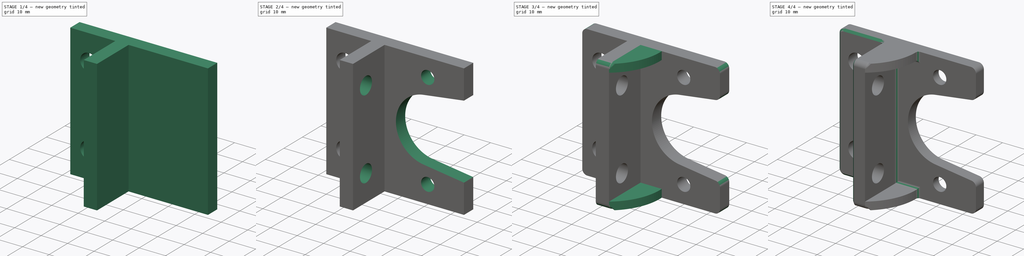
[diagram: build sequence overview — one tinted view per stage of 4, left to right]
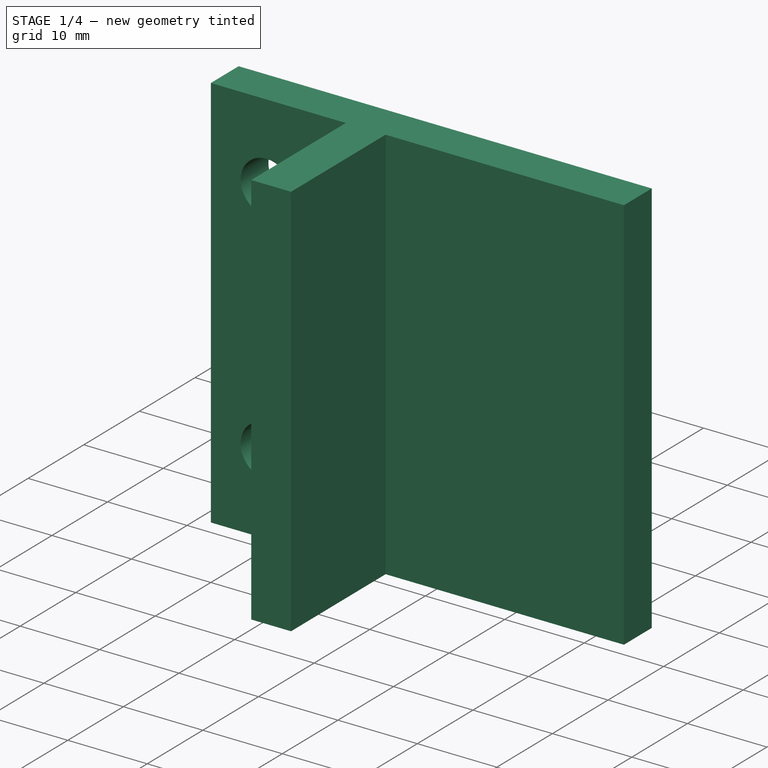
[diagram: stage 1 of 4 — iso view after this stage's code; geometry added in this stage tinted green]
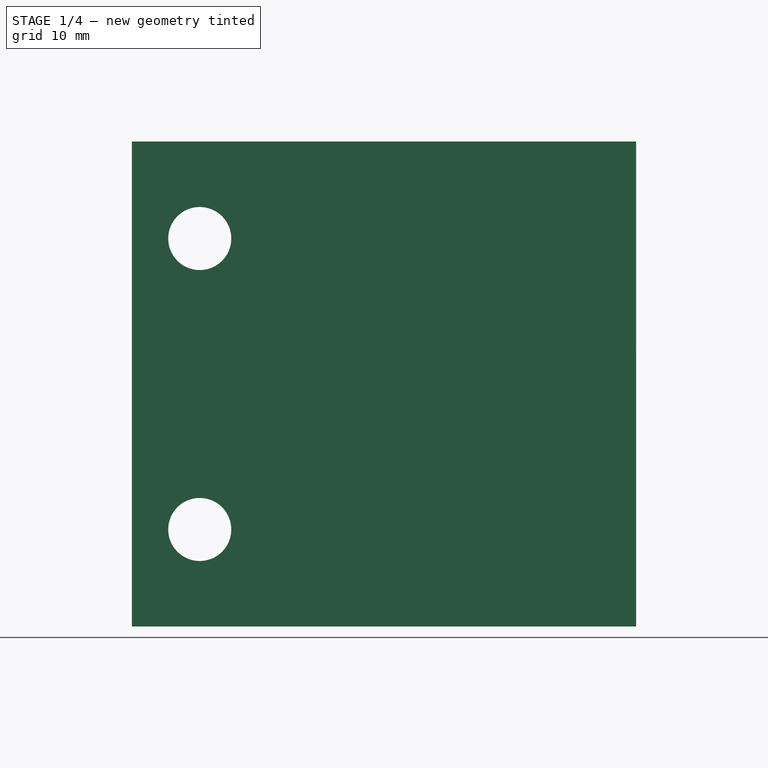
[diagram: stage 1 of 4 — front view after this stage's code; geometry added in this stage tinted green]
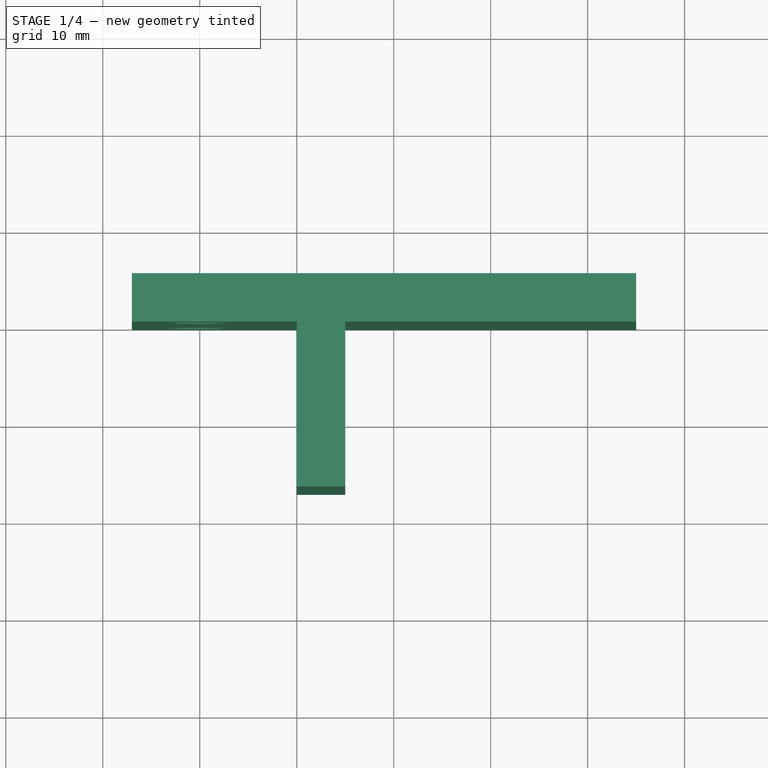
[diagram: stage 1 of 4 — top view after this stage's code; geometry added in this stage tinted green]
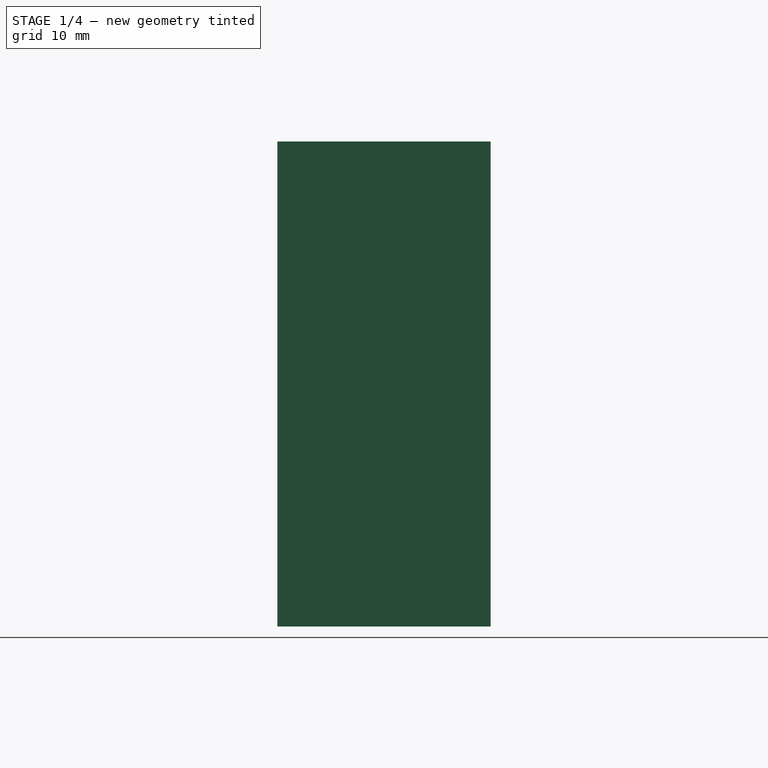
[diagram: stage 1 of 4 — right view after this stage's code; geometry added in this stage tinted green]
FCSTD DOCUMENT  (FreeCAD 0.17R10283 (Git))
Label: bearing_top
License: All rights reserved
LicenseURL: http://en.wikipedia.org/wiki/All_rights_reserved
objects: Sketcher::SketchObject×8, PartDesign::Pocket×6, PartDesign::Pad×2, PartDesign::Fillet×2, PartDesign::Mirrored×1, PartDesign::Chamfer×1, PartDesign::Body×1
note: 29 computed .brp shape members not serialized (recipe doc carries the construction recipe); baked Part::Feature solids carry a one-line shape summary decoded from their .brp

FEATURE [Sketcher::SketchObject] Sketch
  MapMode = 5
  Support = -> [XY_Plane]
  sketch-geometry (4):
    g0: LineSegment StartX=-17 StartY=5 StartZ=0 EndX=35 EndY=5 EndZ=0
    g1: LineSegment StartX=35 StartY=5 StartZ=0 EndX=35 EndY=-17 EndZ=0
    g2: LineSegment StartX=35 StartY=-17 StartZ=0 EndX=-17 EndY=-17 EndZ=0
    g3: LineSegment StartX=-17 StartY=-17 StartZ=0 EndX=-17 EndY=5 EndZ=0
  constraints (12):
    c: Coincident(g0,g1)
    c: Coincident(g1,g2)
    c: Coincident(g2,g3)
    c: Coincident(g3,g0)
    c: Horizontal(g0)
    c: Horizontal(g2)
    c: Vertical(g1)
    c: Vertical(g3)
    c: DistanceX(g0,g0) = 52
    c: DistanceY(g3,g3) = 22
    c: DistanceY(g-1,g0) = 5
    c: DistanceX(g0,g-1) = 17
FEATURE [PartDesign::Pad] Pad
  Length = 50
  Length2 = 100
  Midplane = true
  Profile = -> Sketch
  Type = 0
FEATURE [Sketcher::SketchObject] Sketch001
  ExternalGeometry = -> [Pad]
  MapMode = 5
  Placement = pos=(0,0,25) rot=(0,0,1;0rad)
  Support = -> [Pad]
  sketch-geometry (8):
    g0: LineSegment StartX=-17 StartY=-17 StartZ=0 EndX=0 EndY=-17 EndZ=0
    g1: LineSegment StartX=0 StartY=-17 StartZ=0 EndX=0 EndY=0 EndZ=0
    g2: LineSegment StartX=0 StartY=0 StartZ=0 EndX=-17 EndY=0 EndZ=0
    g3: LineSegment StartX=-17 StartY=0 StartZ=0 EndX=-17 EndY=-17 EndZ=0
    g4: LineSegment StartX=35 StartY=-17 StartZ=0 EndX=5 EndY=-17 EndZ=0
    g5: LineSegment StartX=5 StartY=-17 StartZ=0 EndX=5 EndY=0 EndZ=0
    g6: LineSegment StartX=5 StartY=0 StartZ=0 EndX=35 EndY=0 EndZ=0
    g7: LineSegment StartX=35 StartY=0 StartZ=0 EndX=35 EndY=-17 EndZ=0
  constraints (21):
    c: Coincident(g0,g1)
    c: Coincident(g2,g3)
    c: Coincident(g3,g0)
    c: Horizontal(g0)
    c: Horizontal(g2)
    c: Vertical(g1)
    c: Vertical(g3)
    c: Coincident(g0,g-3)
    c: Coincident(g1,g2)
    c: Coincident(g1,g-1)
    c: Coincident(g4,g5)
    c: Coincident(g5,g6)
    c: Coincident(g6,g7)
    c: Coincident(g7,g4)
    c: Horizontal(g4)
    c: Horizontal(g6)
    c: Vertical(g5)
    c: Vertical(g7)
    c: Coincident(g4,g-4)
    c: DistanceX(g-1,g5) = 5
    c: DistanceY(g-1,g5) = 0
FEATURE [PartDesign::Pocket] Pocket
  BaseFeature = -> Pad
  Length = 5
  Profile = -> Sketch001
  Type = 1
FEATURE [Sketcher::SketchObject] Sketch003
  ExternalGeometry = -> [Pocket]
  MapMode = 5
  Placement = pos=(0,5,0) rot=(0,0.707107,0.707107;3.14159rad)
  Support = -> [Pocket]
  sketch-geometry (2):
    g0: Circle CenterX=10 CenterY=15 CenterZ=0 NormalX=0 NormalY=0 NormalZ=1 Radius=3.25
    g1: Circle CenterX=10 CenterY=-15 CenterZ=0 NormalX=0 NormalY=0 NormalZ=1 Radius=3.25
  constraints (6):
    c: DistanceX(g-1,g0) = 10
    c: Radius(g0) = 3.25
    c: Equal(g0,g1)
    c: DistanceX(g0,g1) = 0
    c: Symmetric(g0,g1,g-1)
    c: DistanceY(g1,g0) = 30
FEATURE [PartDesign::Pocket] Pocket001
  BaseFeature = -> Pocket
  Length = 5
  Profile = -> Sketch003
  Type = 0
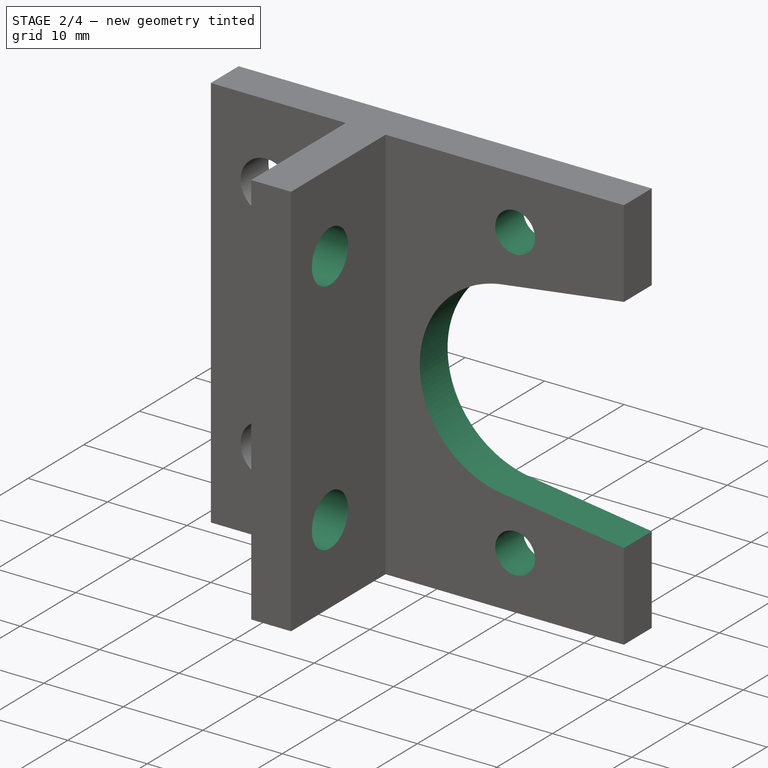
[diagram: stage 2 of 4 — iso view after this stage's code; geometry added in this stage tinted green]
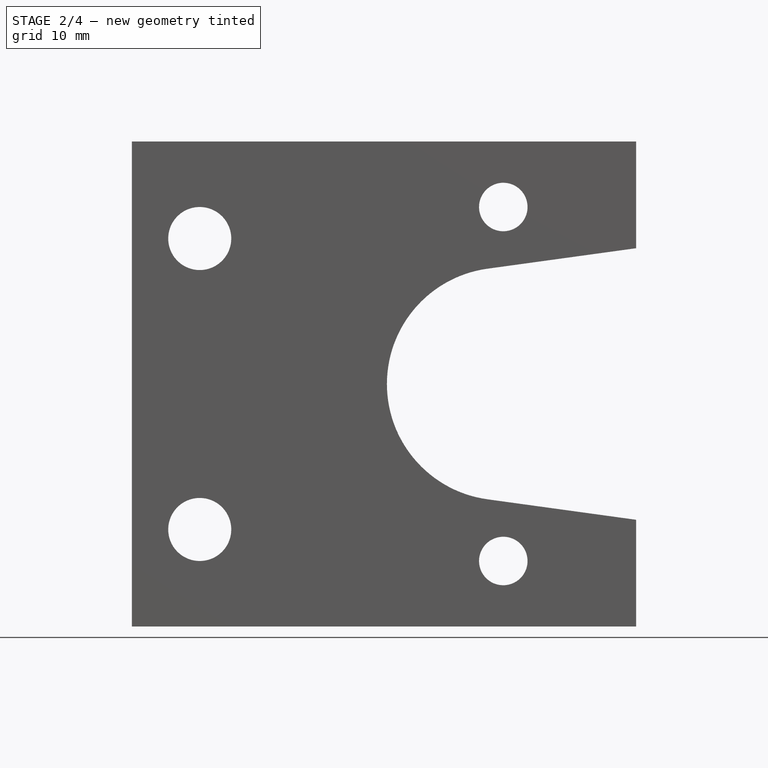
[diagram: stage 2 of 4 — front view after this stage's code; geometry added in this stage tinted green]
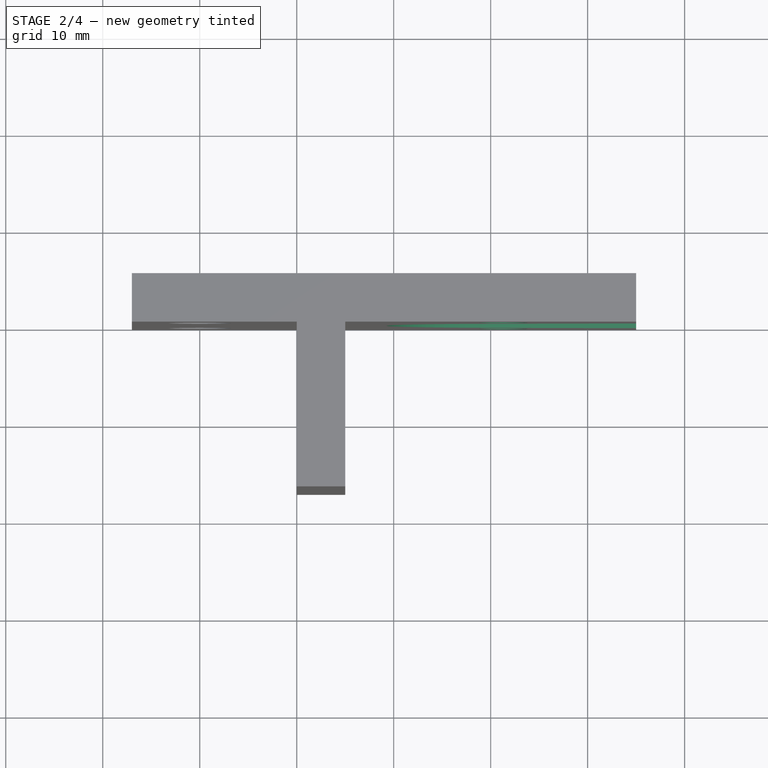
[diagram: stage 2 of 4 — top view after this stage's code; geometry added in this stage tinted green]
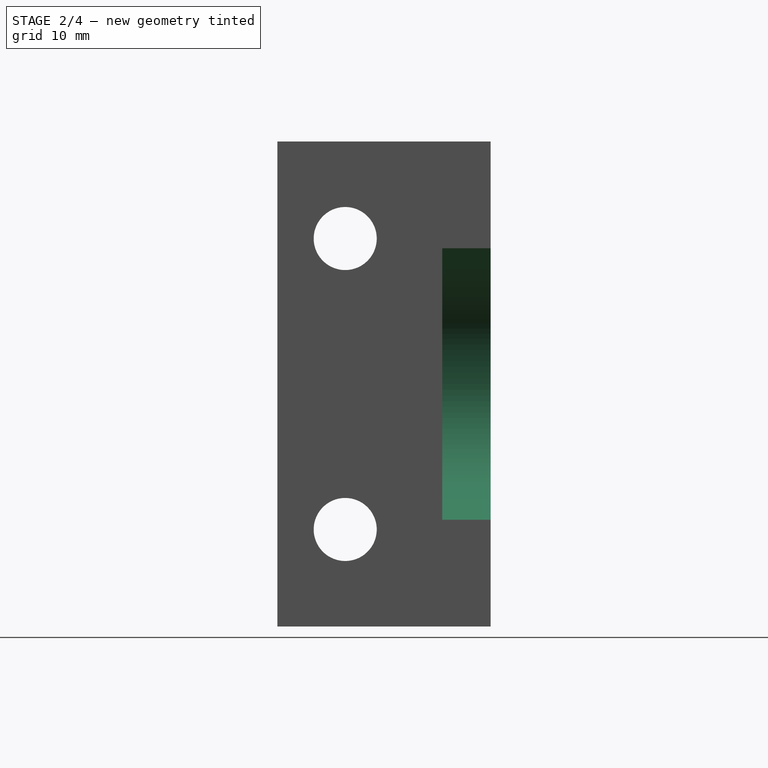
[diagram: stage 2 of 4 — right view after this stage's code; geometry added in this stage tinted green]
FEATURE [Sketcher::SketchObject] Sketch004
  MapMode = 5
  Placement = pos=(35,0,0) rot=(0.57735,0.57735,0.57735;2.0944rad)
  Support = -> [Pocket001]
  sketch-geometry (2):
    g0: Circle CenterX=-10 CenterY=15 CenterZ=0 NormalX=0 NormalY=0 NormalZ=1 Radius=3.25
    g1: Circle CenterX=-10 CenterY=-15 CenterZ=0 NormalX=0 NormalY=0 NormalZ=1 Radius=3.25
  constraints (6):
    c: DistanceX(g0,g-1) = 10
    c: Radius(g0) = 3.25
    c: Equal(g0,g1) = 2
    c: DistanceX(g0,g1) = 0
    c: Symmetric(g0,g1,g-1)
    c: DistanceY(g1,g0) = 30
FEATURE [PartDesign::Pocket] Pocket002
  BaseFeature = -> Pocket001
  Length = 5
  Profile = -> Sketch004
  Type = 1
FEATURE [Sketcher::SketchObject] Sketch005
  ExternalGeometry = -> [Pocket002]
  MapMode = 5
  Placement = pos=(0,0,0) rot=(1,0,0;1.5708rad)
  Support = -> [XZ_Plane]
  sketch-geometry (3):
    g0: Circle CenterX=21.3 CenterY=0 CenterZ=0 NormalX=0 NormalY=0 NormalZ=1 Radius=5
    g1: Circle CenterX=21.3 CenterY=18.25 CenterZ=0 NormalX=0 NormalY=0 NormalZ=1 Radius=2.5
    g2: Circle CenterX=21.3 CenterY=-18.25 CenterZ=0 NormalX=0 NormalY=0 NormalZ=1 Radius=2.5
  constraints (9):
    c: PointOnObject(g0,g-1)
    c: DistanceX(g-2,g0) = 21.3
    c: Radius(g0) = 5
    c: DistanceX(g0,g1) = 0
    c: DistanceX(g0,g2) = 0
    c: DistanceY(g2,g1) = 36.5
    c: Symmetric(g1,g2,g-1)
    c: Radius(g1) = 2.5
    c: Equal(g1,g2)
FEATURE [PartDesign::Pocket] Pocket003
  BaseFeature = -> Pocket002
  Length = 5
  Profile = -> Sketch005
  Type = 1
FEATURE [Sketcher::SketchObject] Sketch007
  ExternalGeometry = -> [Pocket003]
  MapMode = 5
  Placement = pos=(0,5,0) rot=(0,0.707107,0.707107;3.14159rad)
  Support = -> [Pocket003]
  sketch-geometry (4):
    g0: ArcOfCircle CenterX=-21.3 CenterY=0 CenterZ=0 NormalX=0 NormalY=0 NormalZ=1 Radius=12 StartAngle=4.84925 EndAngle=7.71712
    g1: LineSegment StartX=-19.6628 StartY=11.8878 StartZ=0 EndX=-35 EndY=14 EndZ=0
    g2: LineSegment StartX=-35 StartY=14 StartZ=0 EndX=-35 EndY=-14 EndZ=0
    g3: LineSegment StartX=-35 StartY=-14 StartZ=0 EndX=-19.6628 EndY=-11.8878 EndZ=0
  constraints (12):
    c: Coincident(g0,g-3)
    c: PointOnObject(g1,g-4)
    c: Coincident(g1,g2)
    c: Vertical(g2)
    c: Coincident(g2,g3)
    c: Coincident(g3,g0)
    c: Coincident(g0,g1)
    c: Tangent(g0,g1)
    c: Tangent(g0,g3)
    c: Symmetric(g1,g2,g-1)
    c: DistanceY(g2,g1) = 28
    c: Radius(g0) = 12
FEATURE [PartDesign::Pocket] Pocket004
  BaseFeature = -> Pocket003
  Length = 5
  Profile = -> Sketch007
  Type = 0
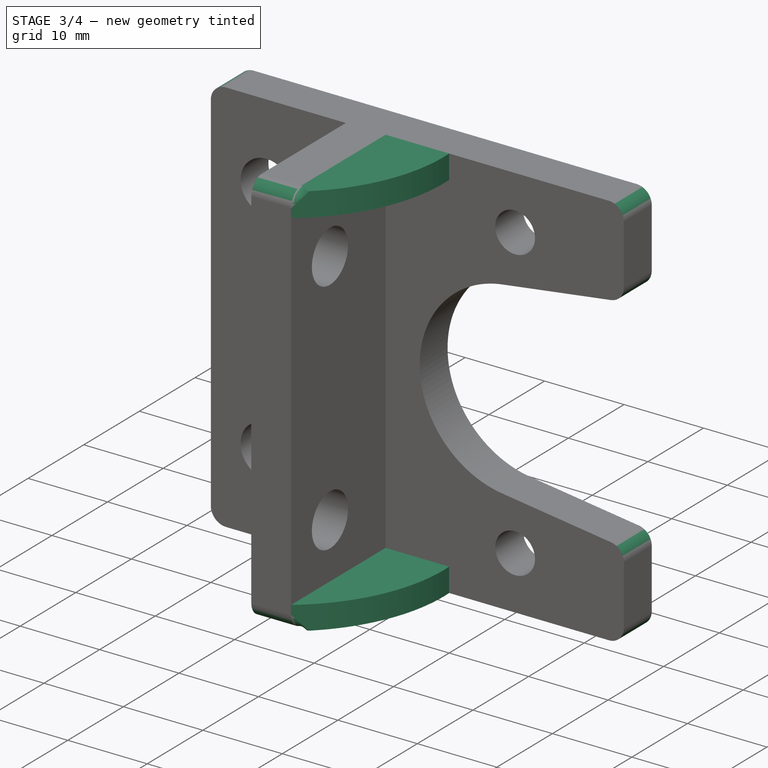
[diagram: stage 3 of 4 — iso view after this stage's code; geometry added in this stage tinted green]
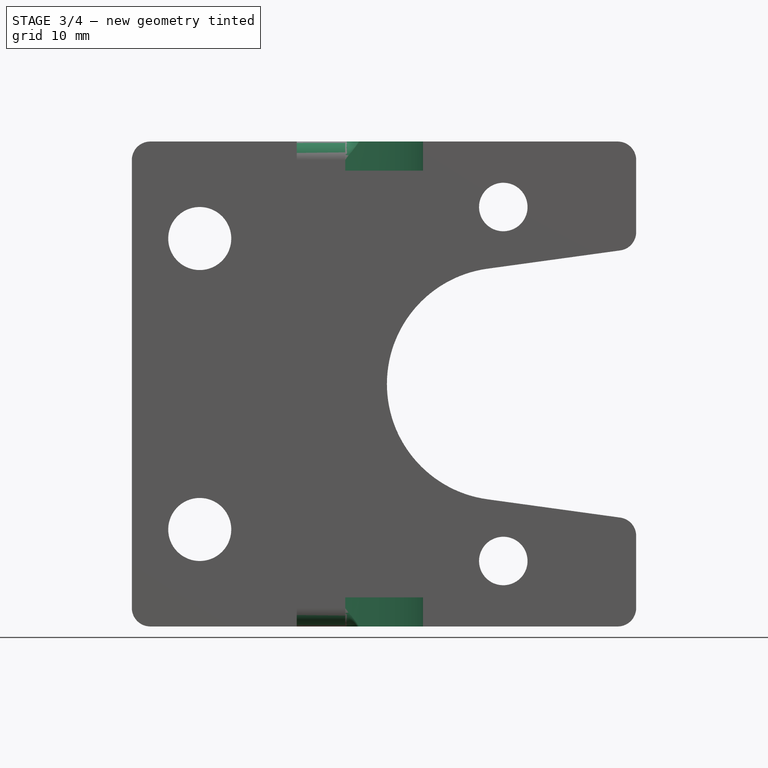
[diagram: stage 3 of 4 — front view after this stage's code; geometry added in this stage tinted green]
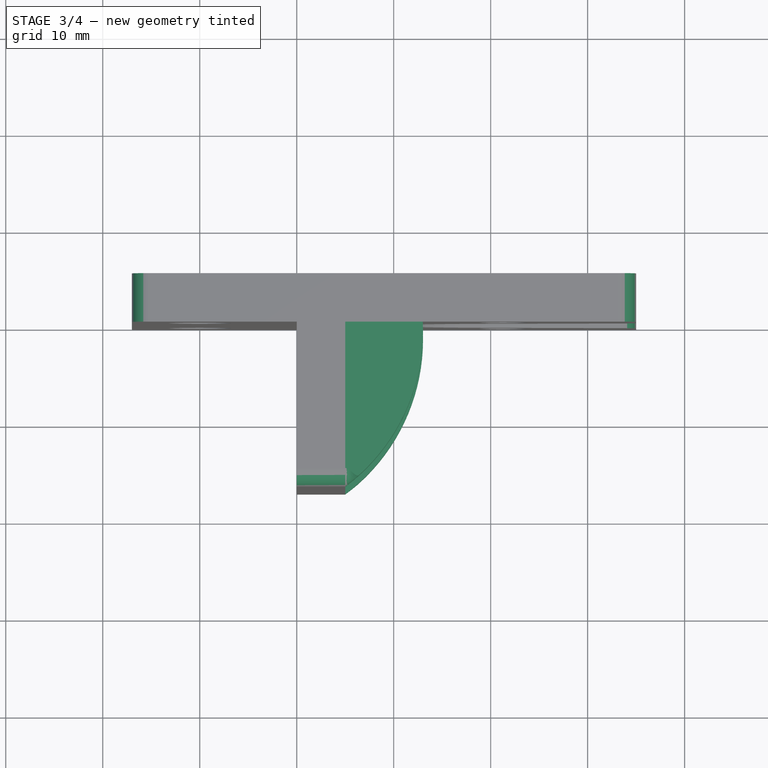
[diagram: stage 3 of 4 — top view after this stage's code; geometry added in this stage tinted green]
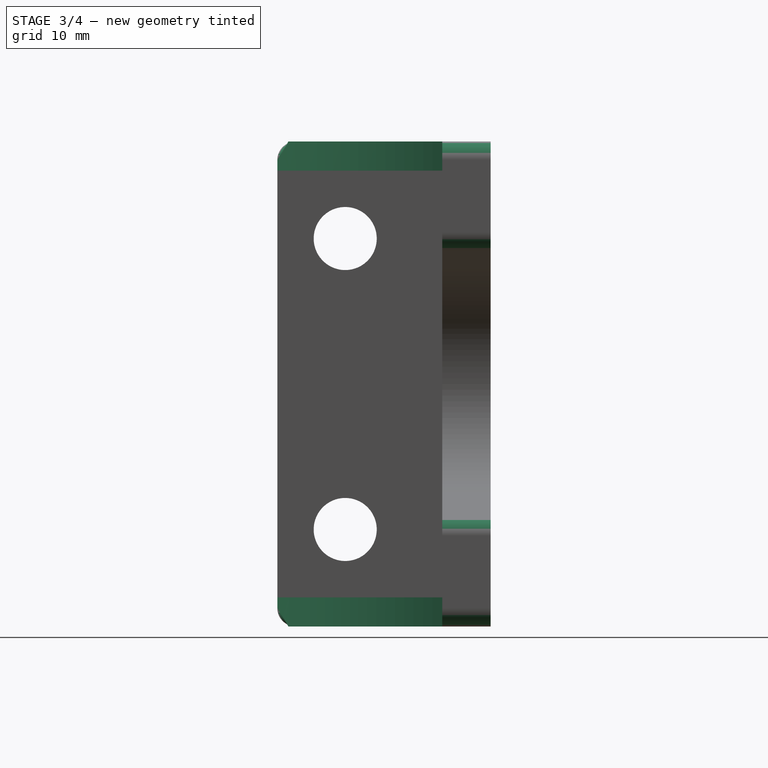
[diagram: stage 3 of 4 — right view after this stage's code; geometry added in this stage tinted green]
FEATURE [Sketcher::SketchObject] Sketch008
  ExternalGeometry = -> [Pocket004]
  MapMode = 5
  Placement = pos=(0,0,-25) rot=(1,0,0;3.14159rad)
  Support = -> [Pocket004]
  sketch-geometry (3):
    g0: LineSegment StartX=5 StartY=17 StartZ=0 EndX=5 EndY=0 EndZ=0
    g1: LineSegment StartX=5 StartY=0 StartZ=0 EndX=13 EndY=0 EndZ=0
    g2: ArcOfCircle CenterX=-6.97588 CenterY=0.981939 CenterZ=0 NormalX=0 NormalY=0 NormalZ=1 Radius=20 StartAngle=6.23407 EndAngle=7.21199
  constraints (8):
    c: Coincident(g-3,g0)
    c: Coincident(g0,g-3)
    c: Coincident(g0,g1)
    c: Horizontal(g1)
    c: Coincident(g2,g0)
    c: Coincident(g2,g1)
    c: Radius(g2) = 20
    c: DistanceX(g0,g1) = 8
FEATURE [PartDesign::Pad] Pad001
  BaseFeature = -> Pocket004
  Length = 3
  Length2 = 100
  Profile = -> Sketch008
  Reversed = true
  Type = 0
FEATURE [PartDesign::Mirrored] Mirrored
  BaseFeature = -> Pad001
  MirrorPlane = -> XY_Plane
  Originals = -> [Pad001]
FEATURE [PartDesign::Fillet] Fillet
  Base = -> Mirrored [Edge34,Edge17,Edge13,Edge31,Edge30,Edge28,Edge22,Edge16]
  BaseFeature = -> Mirrored
  Radius = 1.9
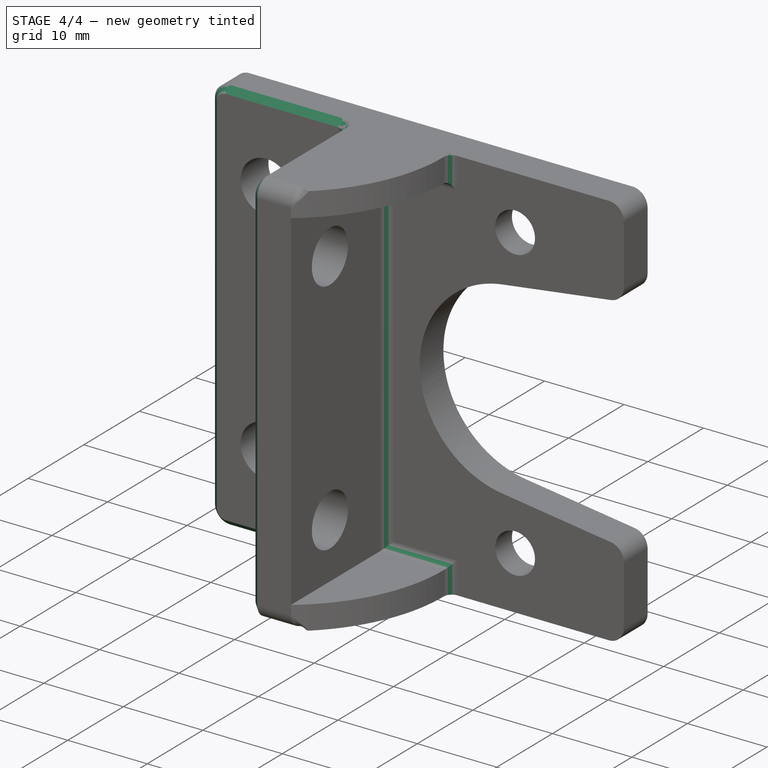
[diagram: stage 4 of 4 — iso view after this stage's code; geometry added in this stage tinted green]
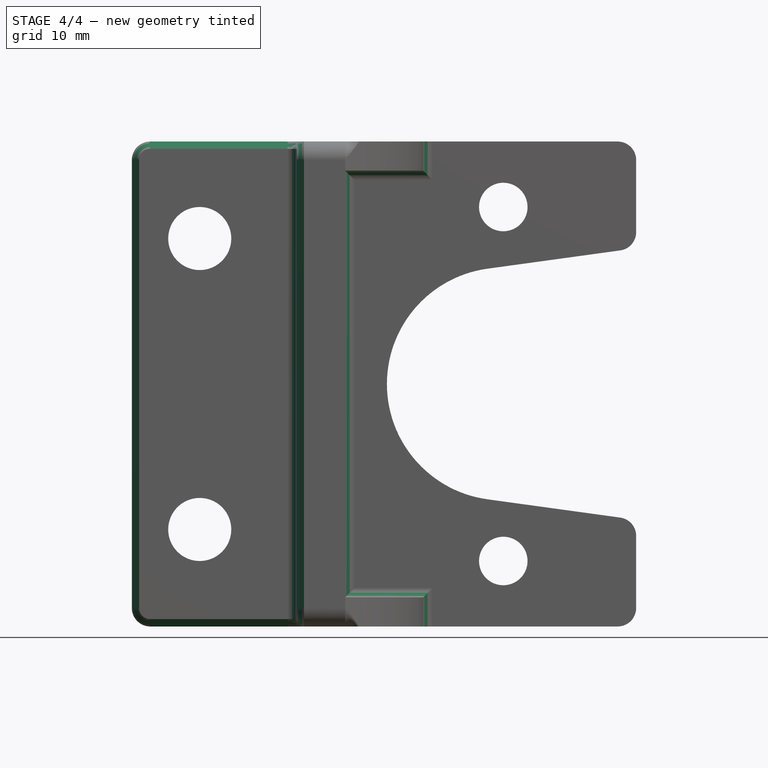
[diagram: stage 4 of 4 — front view after this stage's code; geometry added in this stage tinted green]
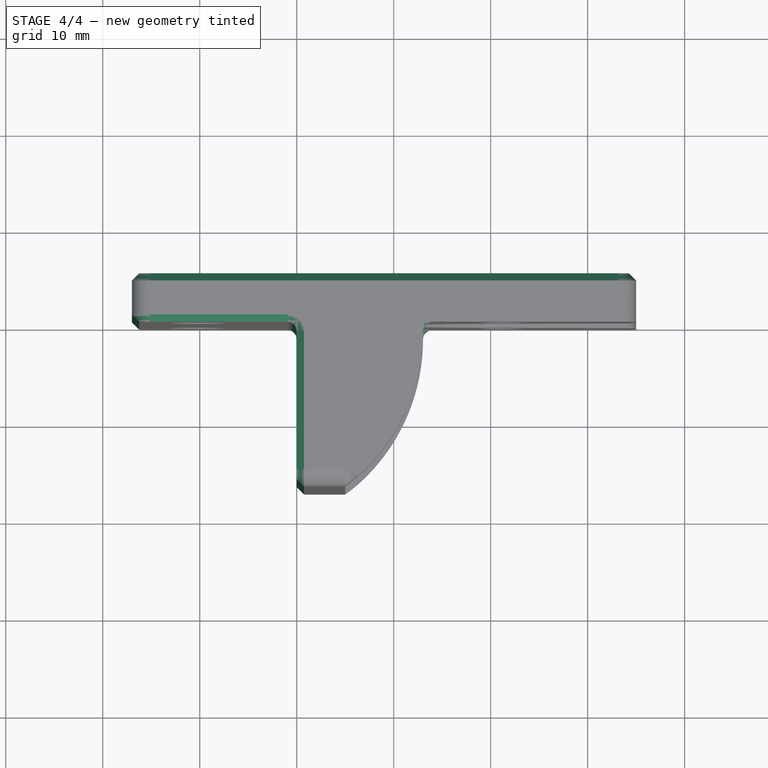
[diagram: stage 4 of 4 — top view after this stage's code; geometry added in this stage tinted green]
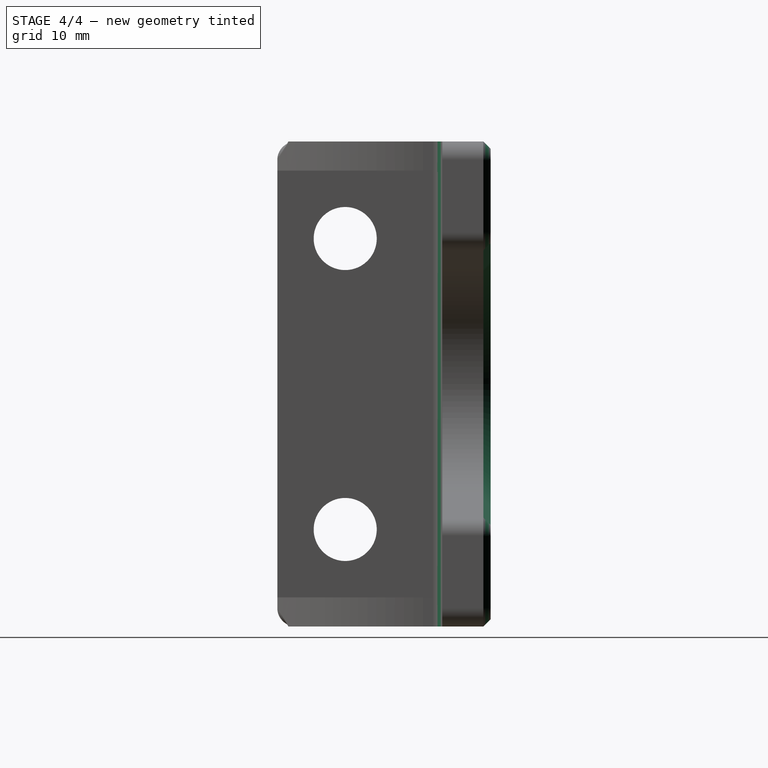
[diagram: stage 4 of 4 — right view after this stage's code; geometry added in this stage tinted green]
FEATURE [PartDesign::Fillet] Fillet001
  Base = -> Fillet [Edge77,Edge75,Edge76,Edge78,Edge79,Edge65]
  BaseFeature = -> Fillet
  Radius = 1
FEATURE [PartDesign::Chamfer] Chamfer
  Base = -> Fillet001 [Edge5,Edge25]
  BaseFeature = -> Fillet001
  Size = 0.75
FEATURE [Sketcher::SketchObject] Sketch009
  ExternalGeometry = -> [Pocket003]
  MapMode = 5
  Placement = pos=(0,5,0) rot=(0,0.707107,0.707107;3.14159rad)
  Support = -> [Pocket003]
  sketch-geometry (14):
    g0: LineSegment StartX=-23.8981 StartY=13.75 StartZ=0 EndX=-18.7019 EndY=13.75 EndZ=0
    g1: LineSegment StartX=-18.7019 StartY=13.75 StartZ=0 EndX=-16.1038 EndY=18.25 EndZ=0
    g2: LineSegment StartX=-16.1038 StartY=18.25 StartZ=0 EndX=-18.7019 EndY=22.75 EndZ=0
    g3: LineSegment StartX=-18.7019 StartY=22.75 StartZ=0 EndX=-23.8981 EndY=22.75 EndZ=0
    g4: LineSegment StartX=-23.8981 StartY=22.75 StartZ=0 EndX=-26.4962 EndY=18.25 EndZ=0
    g5: LineSegment StartX=-26.4962 StartY=18.25 StartZ=0 EndX=-23.8981 EndY=13.75 EndZ=0
    g6: Circle [constr] CenterX=-21.3 CenterY=18.25 CenterZ=0 NormalX=0 NormalY=0 NormalZ=1 Radius=5.19615
    g7: LineSegment StartX=-23.8981 StartY=-22.75 StartZ=0 EndX=-18.7019 EndY=-22.75 EndZ=0
    g8: LineSegment StartX=-18.7019 StartY=-22.75 StartZ=0 EndX=-16.1038 EndY=-18.25 EndZ=0
    g9: LineSegment StartX=-16.1038 StartY=-18.25 StartZ=0 EndX=-18.7019 EndY=-13.75 EndZ=0
    g10: LineSegment StartX=-18.7019 StartY=-13.75 StartZ=0 EndX=-23.8981 EndY=-13.75 EndZ=0
    g11: LineSegment StartX=-23.8981 StartY=-13.75 StartZ=0 EndX=-26.4962 EndY=-18.25 EndZ=0
    g12: LineSegment StartX=-26.4962 StartY=-18.25 StartZ=0 EndX=-23.8981 EndY=-22.75 EndZ=0
    g13: Circle [constr] CenterX=-21.3 CenterY=-18.25 CenterZ=0 NormalX=0 NormalY=0 NormalZ=1 Radius=5.19615
  constraints (32):
    c: Coincident(g0,g1)
    c: Coincident(g1,g2)
    c: Coincident(g2,g3)
    c: Coincident(g3,g4)
    c: Coincident(g4,g5)
    c: Coincident(g5,g0)
    c: Equal(g0, g1-g5) x5
    c: PointOnObject(g0,g6)
    c: PointOnObject(g1,g6)
    c: PointOnObject(g2,g6)
    c: PointOnObject(g3,g6)
    c: PointOnObject(g4,g6)
    c: PointOnObject(g5,g6)
    c: Coincident(g7,g8)
    c: Coincident(g8,g9)
    c: Coincident(g9,g10)
    c: Coincident(g10,g11)
    c: Coincident(g11,g12)
    c: Coincident(g12,g7)
    c: Equal(g7, g8-g12) x5
    c: PointOnObject(g7,g13)
    c: PointOnObject(g8,g13)
    c: PointOnObject(g9,g13)
    c: PointOnObject(g10,g13)
    c: PointOnObject(g11,g13)
    c: PointOnObject(g12,g13)
    c: Coincident(g13,g-4)
    c: Horizontal(g3)
    c: DistanceY(g0,g3) = 9
    c: Coincident(g6,g-3)
    c: Horizontal(g10)
    c: DistanceY(g7,g10) = 9
FEATURE [PartDesign::Pocket] Pocket005
  BaseFeature = -> Chamfer
  Length = 2
  Profile = -> Sketch009
  Type = 0
FEATURE [PartDesign::Body] Body
  Group = -> [Sketch,Pad,Sketch001,Pocket,Sketch003,Pocket001,Sketch004,Pocket002,Sketch005,Pocket003,Sketch007,Pocket004,Sketch008,Pad001,Mirrored,Fillet,Fillet001,Chamfer,Sketch009,Pocket005]
  Origin = -> BodyOrigin
  Tip = -> Fillet
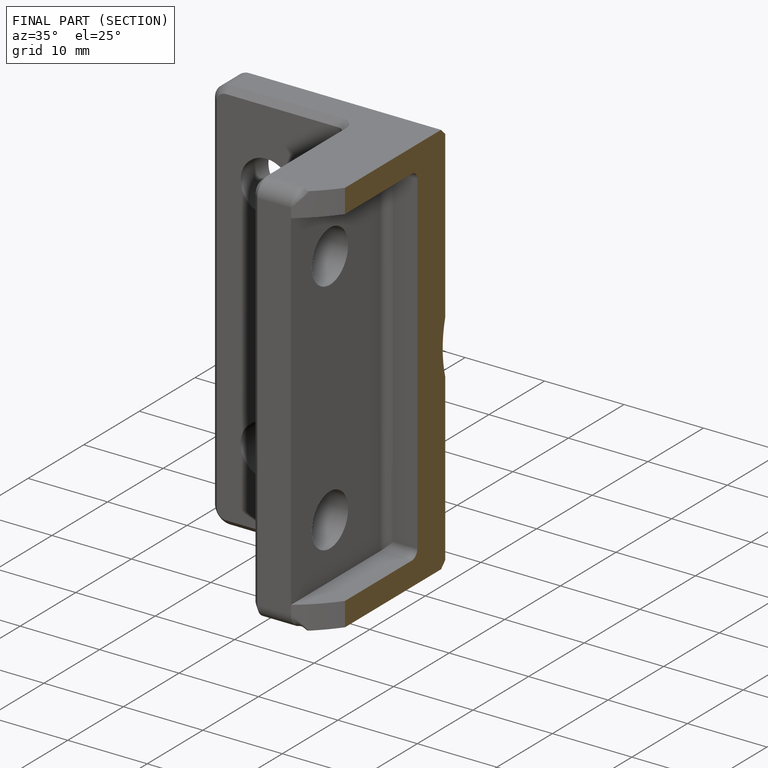
[diagram: finished part — half-section view (interior)]
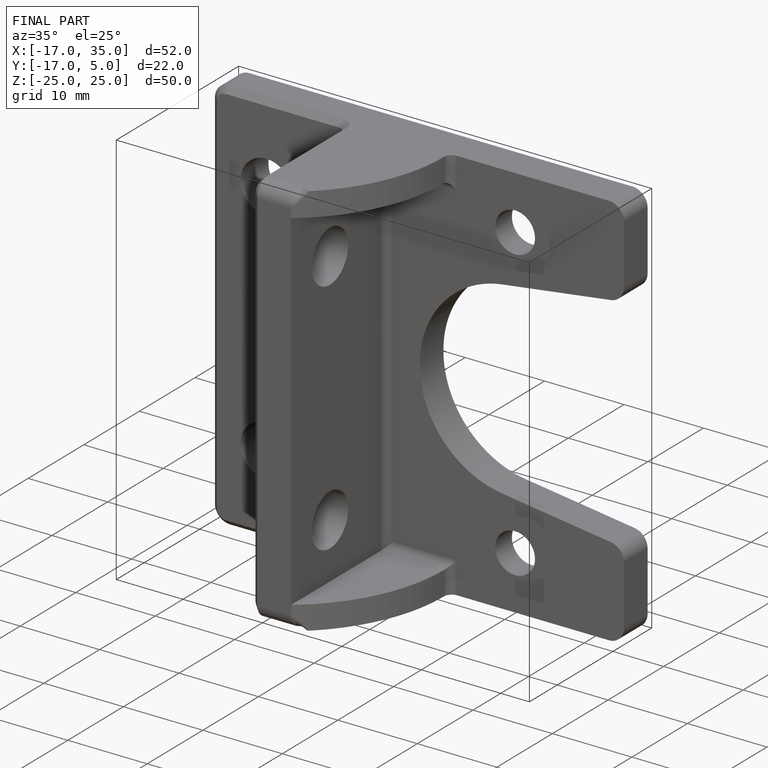
[diagram: finished part — iso view with bounding-box wireframe]
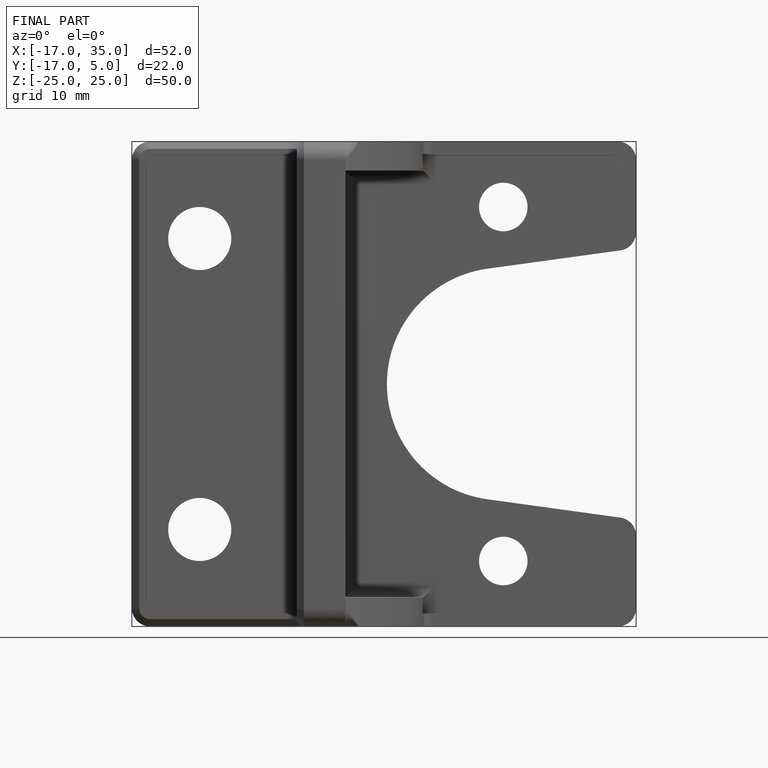
[diagram: finished part — front view with bounding-box wireframe]
